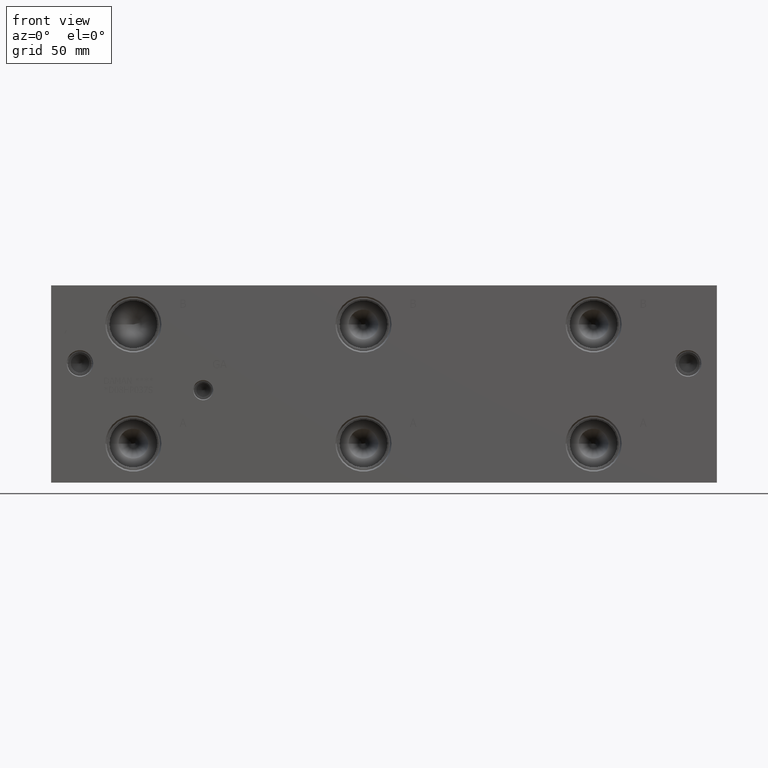
[diagram: clean part render]
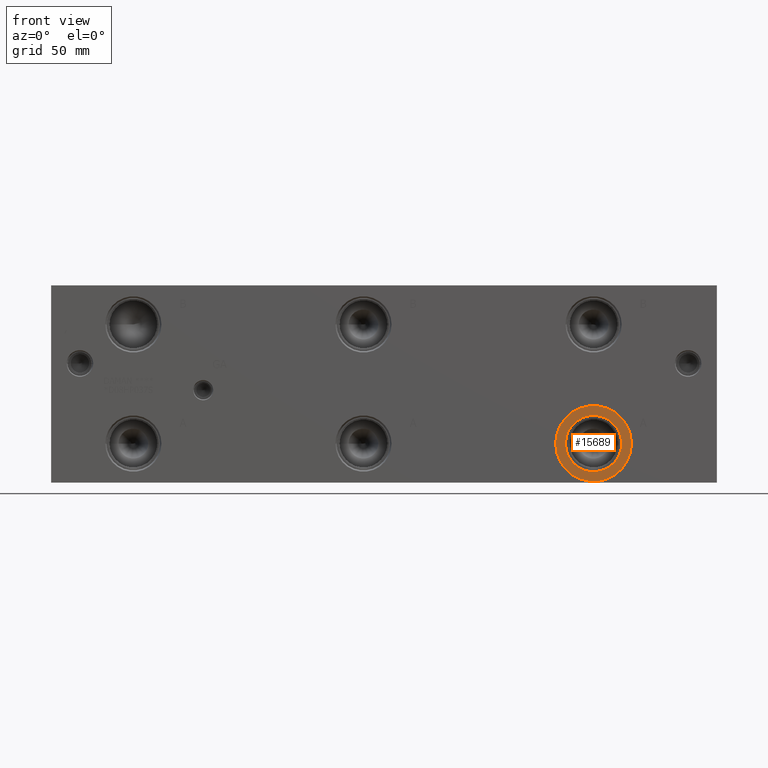
[diagram: same view with one face highlighted and labeled with its STEP entity id]
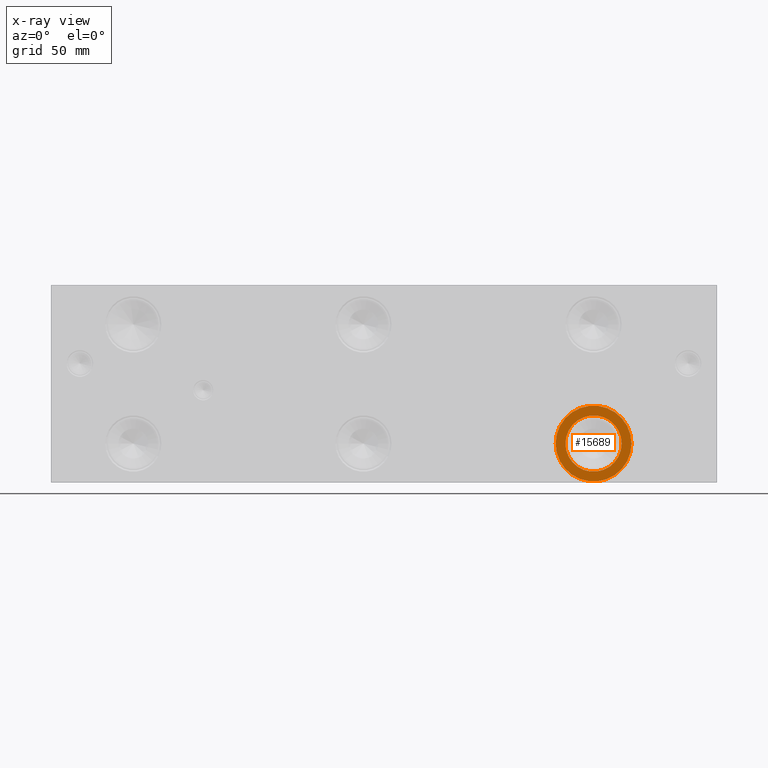
[diagram: x-ray of the same camera — body ghosted, the highlighted face saturated]
A machine part, front view. The second image highlights one B-rep face of the part: STEP entity #15689.
The next image is the same camera in x-ray: the body ghosted, the highlighted face saturated — about 0% of this face is hidden behind the body in this view.
In plain terms, the highlighted planar face has unit normal (0, -1, 0).
Its self-contained STEP definition (entity closure, byte-faithful):
#485=CIRCLE('',#16602,29.2862);
#486=CIRCLE('',#16603,29.2862);
#487=CIRCLE('',#16604,21.7551);
#813=FACE_BOUND('',#2917,.T.);
#1273=PLANE('',#16601);
#1992=FACE_OUTER_BOUND('',#2916,.T.);
#2916=EDGE_LOOP('',(#13583,#13584));
#2917=EDGE_LOOP('',(#13585));
#7450=VERTEX_POINT('',#26656);
#7451=VERTEX_POINT('',#26657);
#7452=VERTEX_POINT('',#26660);
#9573=EDGE_CURVE('',#7450,#7451,#485,.T.);
#9574=EDGE_CURVE('',#7451,#7450,#486,.T.);
#9575=EDGE_CURVE('',#7452,#7452,#487,.T.);
#13583=ORIENTED_EDGE('',*,*,#9573,.T.);
#13584=ORIENTED_EDGE('',*,*,#9574,.T.);
#13585=ORIENTED_EDGE('',*,*,#9575,.F.);
#15689=ADVANCED_FACE('',(#1992,#813),#1273,.T.);
#16601=AXIS2_PLACEMENT_3D('',#26655,#19754,#19755);
#16602=AXIS2_PLACEMENT_3D('',#26658,#19756,#19757);
#16603=AXIS2_PLACEMENT_3D('',#26659,#19758,#19759);
#16604=AXIS2_PLACEMENT_3D('',#26661,#19760,#19761);
#19754=DIRECTION('center_axis',(0.,-1.,0.));
#19755=DIRECTION('ref_axis',(1.,0.,0.));
#19756=DIRECTION('center_axis',(0.,-1.,0.));
#19757=DIRECTION('ref_axis',(1.,0.,0.));
#19758=DIRECTION('center_axis',(0.,-1.,0.));
#19759=DIRECTION('ref_axis',(1.,0.,0.));
#19760=DIRECTION('center_axis',(0.,-1.,0.));
#19761=DIRECTION('ref_axis',(1.,0.,0.));
#26655=CARTESIAN_POINT('Origin',(419.1,0.7874,30.1752));
#26656=CARTESIAN_POINT('',(448.3862,0.7874,30.1752));
#26657=CARTESIAN_POINT('',(389.8138,0.7874,30.1752));
#26658=CARTESIAN_POINT('Origin',(419.1,0.7874,30.1752));
#26659=CARTESIAN_POINT('Origin',(419.1,0.7874,30.1752));
#26660=CARTESIAN_POINT('',(397.3449,0.7874,30.1752));
#26661=CARTESIAN_POINT('Origin',(419.1,0.7874,30.1752));